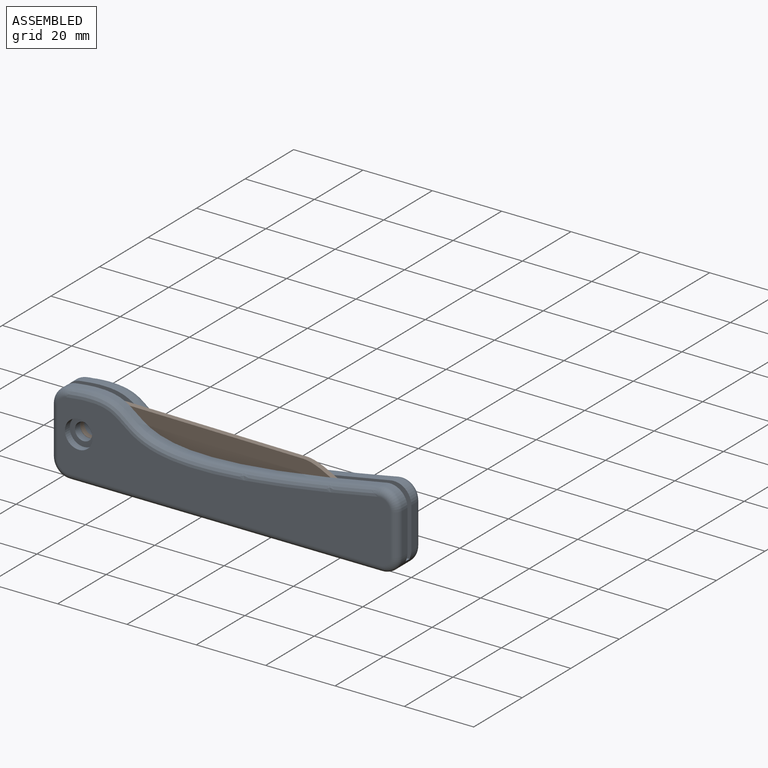
[diagram: assembled view]
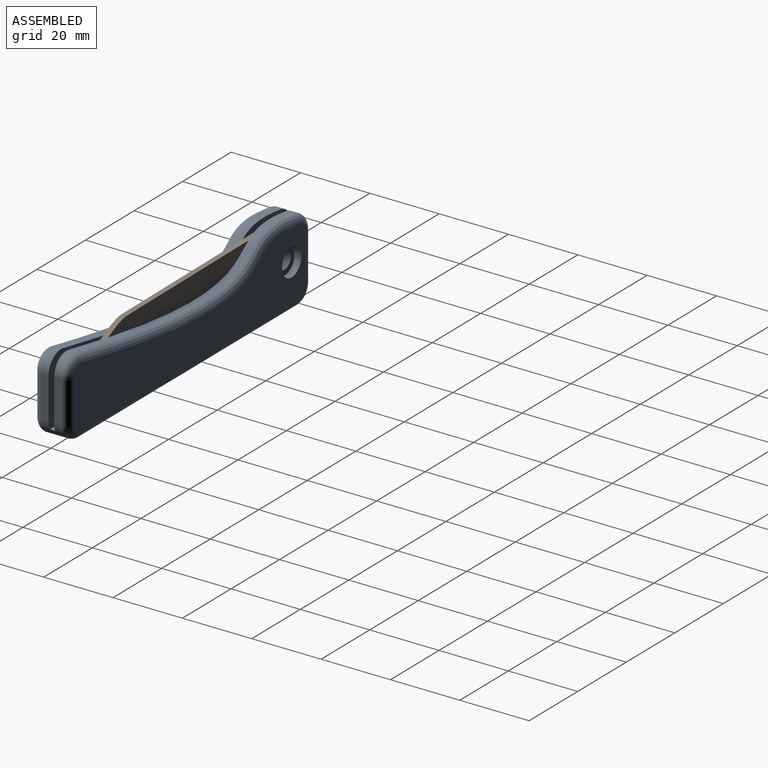
[diagram: assembled view, second angle]
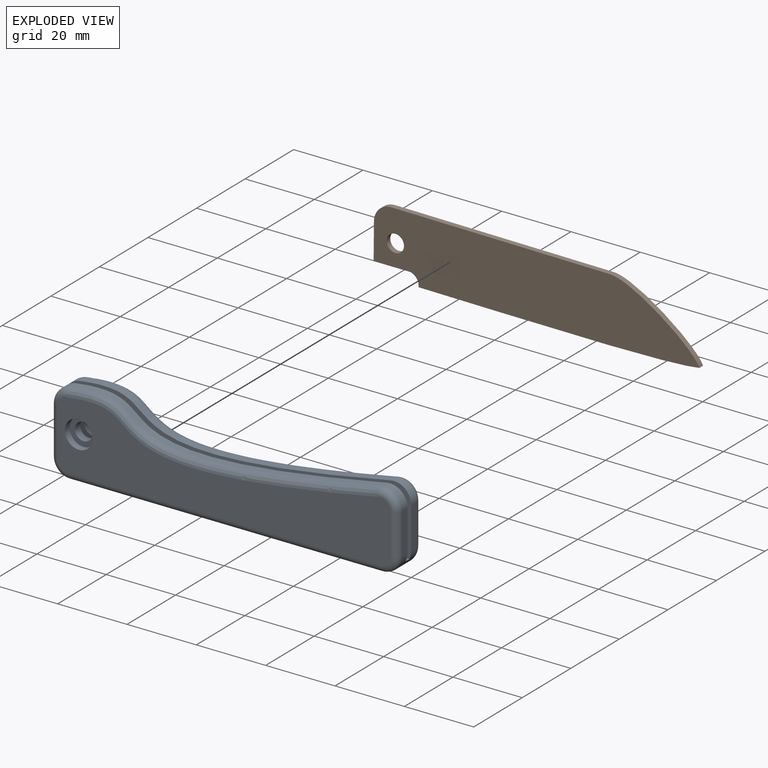
[diagram: exploded view]
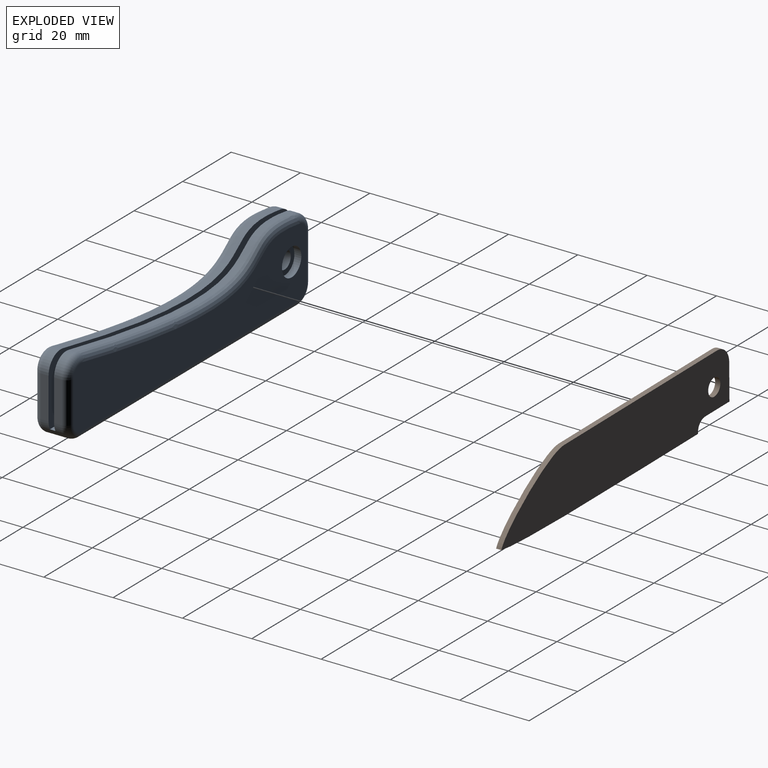
[diagram: exploded view, second angle]
ASSEMBLY  parts=2 mates=2
PART A: 42 faces, bbox 104.4x10x31.1 mm
  f0: cylinder r=2.5mm len=5mm, axis (0,-1,0), area 34.6mm2, adj f17,f37
  f1: plane 11.89x2.2mm, normal (1,0,0), area 26.2mm2, adj f5,f12,f22,f37
  f2: plane 13.78x2.2mm, normal (-1,0,0), area 30.3mm2, adj f4,f15,f20,f37
  f3: extruded ~89.76x9.32mm, area 203.4mm2, adj f4,f5,f13,f37
  f4: cylinder r=5mm len=4.95mm, axis (0,-1,0), area 15.7mm2, adj f2,f3,f19,f37
  f5: cylinder r=5mm len=5.97mm, axis (0,-1,0), area 19.4mm2, adj f1,f3,f25,f37
  f6: plane 96x20.33mm, normal (0,1,0), area 1356.9mm2, adj f12,f13,f14,f15,f16,f19,f21,f23
  f7: cylinder r=2.5mm len=5mm, axis (0,-1,0), area 34.6mm2, adj f32,f38
  f8: plane 11.89x2.2mm, normal (1,0,0), area 26.2mm2, adj f22,f24,f27,f38
  f9: plane 90x6mm, normal (0,0,-1), area 540mm2, adj f14,f20,f22,f29
  f10: plane 13.78x2.2mm, normal (-1,0,0), area 30.3mm2, adj f18,f20,f30,f38
  f11: extruded ~89.76x9.32mm, area 203.4mm2, adj f18,f24,f28,f38
  f12: cylinder r=2mm len=11.89mm, axis (0,0,1), area 37.4mm2, adj f1,f6,f23,f25
  f13: bspline ~92.08x11.33mm, area 290.6mm2, adj f3,f6,f19,f25
  f14: cylinder r=2mm len=90mm, axis (1,0,0), area 282.7mm2, adj f6,f9,f21,f23
  f15: cylinder r=2mm len=13.78mm, axis (0,0,-1), area 43.3mm2, adj f2,f6,f19,f21
  f16: cylinder r=4mm len=8mm, axis (0,1,0), area 50.3mm2, adj f6,f17
  f17: plane 8x8mm, normal (0,1,0), area 30.6mm2, adj f0,f16
  f18: cylinder r=5mm len=4.95mm, axis (0,-1,0), area 15.7mm2, adj f10,f11,f33,f38
  f19: torus R=3mm, axis (0,1,0), area 19.1mm2, adj f4,f6,f13,f15
  f20: cylinder r=5mm len=6mm, axis (0,1,0), area 45mm2, adj f2,f9,f10,f21,f34,f37,f38,f39
  f21: torus R=3mm, axis (0,1,0), area 21.1mm2, adj f6,f14,f15,f20
  f22: cylinder r=5mm len=6mm, axis (0,-1,0), area 43.3mm2, adj f1,f8,f9,f23,f35,f37,f38,f41
  f23: torus R=3mm, axis (0,1,0), area 21.1mm2, adj f6,f12,f14,f22
  f24: cylinder r=5mm len=5.97mm, axis (0,-1,0), area 19.4mm2, adj f8,f11,f36,f38
  f25: torus R=3mm, axis (0,1,0), area 23.7mm2, adj f5,f6,f12,f13
  f26: plane 96x20.33mm, normal (0,-1,0), area 1356.9mm2, adj f27,f28,f29,f30,f31,f33,f34,f35
  f27: cylinder r=2mm len=11.89mm, axis (0,0,1), area 37.4mm2, adj f8,f26,f35,f36
  f28: bspline ~92.08x11.33mm, area 290.6mm2, adj f11,f26,f33,f36
  f29: cylinder r=2mm len=90mm, axis (1,0,0), area 282.7mm2, adj f9,f26,f34,f35
  f30: cylinder r=2mm len=13.78mm, axis (0,0,-1), area 43.3mm2, adj f10,f26,f33,f34
  f31: cylinder r=4mm len=8mm, axis (0,-1,0), area 50.3mm2, adj f26,f32
  f32: plane 8x8mm, normal (0,-1,0), area 30.6mm2, adj f7,f31
  f33: torus R=3mm, axis (0,-1,0), area 19.1mm2, adj f18,f26,f28,f30
  f34: torus R=3mm, axis (0,-1,0), area 21.1mm2, adj f20,f26,f29,f30
  f35: torus R=3mm, axis (0,-1,0), area 21.1mm2, adj f22,f26,f27,f29
  f36: torus R=3mm, axis (0,-1,0), area 23.7mm2, adj f24,f26,f27,f28
  f37: plane 103.99x27.93mm, normal (0,-1,0), area 1583.2mm2, adj f0,f1,f2,f3,f4,f5,f20,f22
  f38: plane 103.99x27.93mm, normal (0,1,0), area 1583.2mm2, adj f7,f8,f10,f11,f18,f20,f22,f24
  f39: plane 10x1.6mm, normal (0,0,1), area 16mm2, adj f20,f37,f38,f40
  f40: plane 1.6x1mm, normal (1,0,0), area 1.6mm2, adj f37,f38,f39,f41
  f41: plane 89.28x1.6mm, normal (0,0,1), area 142.8mm2, adj f22,f37,f38,f40
PART B: 10 faces, bbox 94x19.3x1.5 mm
  f0: plane 63x1.5mm, normal (0,1,0), area 94.5mm2, adj f1,f6,f8,f9
  f1: extruded ~26x17.3mm, area 47.8mm2, adj f0,f2,f8,f9
  f2: extruded ~81.02x1.5mm, area 121.6mm2, adj f1,f3,f8,f9
  f3: cylinder r=3mm len=3.37mm, axis (0,0,-1), area 7.6mm2, adj f2,f4,f8,f9
  f4: plane 10x1.5mm, normal (0,-1,0), area 15mm2, adj f3,f5,f8,f9
  f5: plane 10.3x1.5mm, normal (1,0,0), area 15.5mm2, adj f4,f6,f8,f9
  f6: cylinder r=5mm len=5mm, axis (0,0,-1), area 11.8mm2, adj f0,f5,f8,f9
  f7: cylinder r=2.5mm len=5mm, axis (0,0,-1), area 23.6mm2, adj f8,f9
  f8: plane 94x19.34mm, normal (0,0,1), area 1507.3mm2, adj f0,f1,f2,f3,f4,f5,f6,f7
  f9: plane 94x19.34mm, normal (0,0,-1), area 1507.3mm2, adj f0,f1,f2,f3,f4,f5,f6,f7
PLACE A t=(-192.39,-61.66,10.79)mm fixed
PLACE B rot(axis=(0,-0.71,-0.71),179.6deg) t=(-187.94,-20.84,53.46)mm
MATE cylindrical B.f7 <-> A.f31  axis (0,-1,0) through (-112.32,-19.34,20.79)mm
MATE planar B.f8 <-> A.f37  axis (0,1,0) through (-81.94,-19.34,29.61)mm
